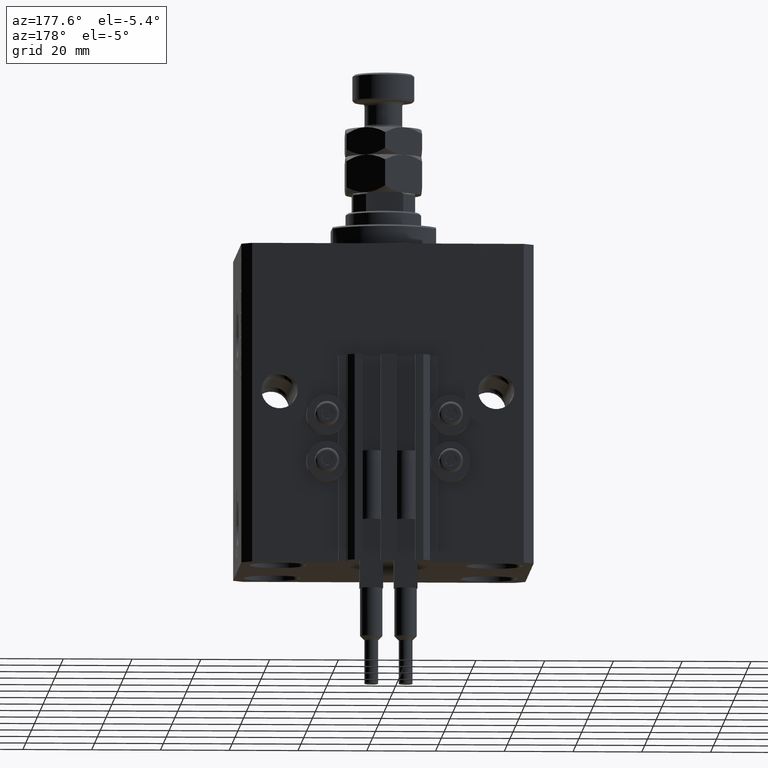
[diagram: clean part render]
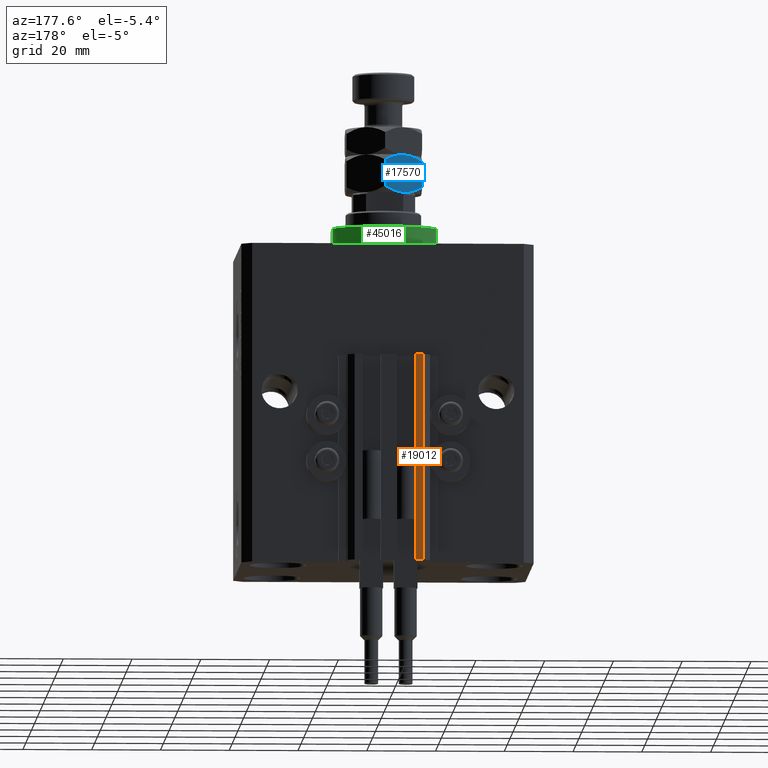
[diagram: same view with three faces highlighted in distinct colors, each labeled with its STEP entity id]
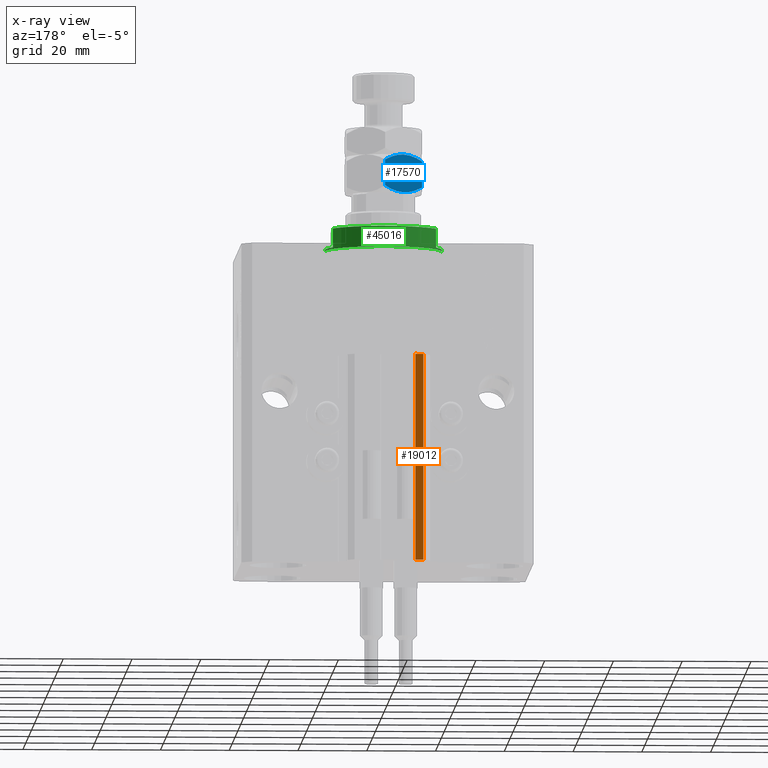
[diagram: x-ray of the same camera — body ghosted, the three highlighted faces saturated]
A machine part, auxiliary view with three faces highlighted in distinct colors.
The next image is the same camera in x-ray (body ghosted, the three faces saturated) — at least one of them is partly hidden behind the body in this view.
Their STEP definitions:

[orange] entity #19012 — the highlighted planar face has unit normal (0, 1, 0).
#2567 = LINE ( 'NONE', #9746, #6395 ) ;
#3999 = CARTESIAN_POINT ( 'NONE',  ( -10.00000000000000000, 39.49999999999999289, -33.00000000000000000 ) ) ;
#5890 = EDGE_CURVE ( 'NONE', #11128, #13627, #31370, .T. ) ;
#6395 = VECTOR ( 'NONE', #29684, 1000.000000000000000 ) ;
#8713 = ORIENTED_EDGE ( 'NONE', *, *, #41497, .F. ) ;
#9449 = CARTESIAN_POINT ( 'NONE',  ( -7.650000000000002132, 39.49999999999999289, -93.00000000000000000 ) ) ;
#9746 = CARTESIAN_POINT ( 'NONE',  ( -7.650000000000002132, 39.49999999999999289, -33.00000000000000000 ) ) ;
#11128 = VERTEX_POINT ( 'NONE', #9449 ) ;
#11771 = FACE_OUTER_BOUND ( 'NONE', #12920, .T. ) ;
#12134 = CARTESIAN_POINT ( 'NONE',  ( -7.650000000000002132, 39.49999999999999289, -93.00000000000000000 ) ) ;
#12920 = EDGE_LOOP ( 'NONE', ( #8713, #31253, #44027, #21260 ) ) ;
#13582 = CARTESIAN_POINT ( 'NONE',  ( -10.00000000000000000, 39.49999999999999289, -93.00000000000000000 ) ) ;
#13627 = VERTEX_POINT ( 'NONE', #39237 ) ;
#13652 = DIRECTION ( 'NONE',  ( -1.000000000000000000, 0.000000000000000000, 0.000000000000000000 ) ) ;
#15983 = LINE ( 'NONE', #12134, #47927 ) ;
#19012 = ADVANCED_FACE ( 'NONE', ( #11771 ), #45838, .T. ) ;
#20171 = EDGE_CURVE ( 'NONE', #40782, #38374, #24376, .T. ) ;
#21176 = EDGE_CURVE ( 'NONE', #11128, #40782, #15983, .T. ) ;
#21260 = ORIENTED_EDGE ( 'NONE', *, *, #20171, .T. ) ;
#23571 = DIRECTION ( 'NONE',  ( 0.000000000000000000, 0.000000000000000000, 1.000000000000000000 ) ) ;
#24376 = LINE ( 'NONE', #13582, #26674 ) ;
#24650 = VECTOR ( 'NONE', #43143, 1000.000000000000000 ) ;
#26674 = VECTOR ( 'NONE', #36901, 1000.000000000000000 ) ;
#27393 = DIRECTION ( 'NONE',  ( 0.000000000000000000, 1.000000000000000000, -0.000000000000000000 ) ) ;
#29684 = DIRECTION ( 'NONE',  ( -1.000000000000000000, 0.000000000000000000, 0.000000000000000000 ) ) ;
#30693 = AXIS2_PLACEMENT_3D ( 'NONE', #46840, #27393, #23571 ) ;
#31253 = ORIENTED_EDGE ( 'NONE', *, *, #5890, .F. ) ;
#31370 = LINE ( 'NONE', #46719, #24650 ) ;
#36901 = DIRECTION ( 'NONE',  ( 0.000000000000000000, 0.000000000000000000, 1.000000000000000000 ) ) ;
#38374 = VERTEX_POINT ( 'NONE', #3999 ) ;
#39237 = CARTESIAN_POINT ( 'NONE',  ( -7.650000000000002132, 39.49999999999999289, -33.00000000000000000 ) ) ;
#40782 = VERTEX_POINT ( 'NONE', #42220 ) ;
#41497 = EDGE_CURVE ( 'NONE', #13627, #38374, #2567, .T. ) ;
#42220 = CARTESIAN_POINT ( 'NONE',  ( -10.00000000000000000, 39.49999999999999289, -93.00000000000000000 ) ) ;
#43143 = DIRECTION ( 'NONE',  ( 0.000000000000000000, 0.000000000000000000, 1.000000000000000000 ) ) ;
#44027 = ORIENTED_EDGE ( 'NONE', *, *, #21176, .T. ) ;
#45838 = PLANE ( 'NONE',  #30693 ) ;
#46719 = CARTESIAN_POINT ( 'NONE',  ( -7.650000000000002132, 39.49999999999999289, -93.00000000000000000 ) ) ;
#46840 = CARTESIAN_POINT ( 'NONE',  ( -7.650000000000002132, 39.49999999999999289, -93.00000000000000000 ) ) ;
#47927 = VECTOR ( 'NONE', #13652, 1000.000000000000000 ) ;

[blue] entity #17570 — the highlighted planar face has unit normal (0.5, -0.866, 0).
#261 = CARTESIAN_POINT ( 'NONE',  ( -11.00000000000000000, 6.350852961085892368, 1.701705922171765195 ) ) ;
#374 = CARTESIAN_POINT ( 'NONE',  ( -4.543329525579419048, 10.07861339756131791, 1.768604793866978714E-15 ) ) ;
#889 = EDGE_LOOP ( 'NONE', ( #8800, #24071, #37839, #48757, #32128, #46917 ) ) ;
#1972 = CARTESIAN_POINT ( 'NONE',  ( -3.579894028994817123, 10.63485314086127786, 10.79187792513292798 ) ) ;
#2733 = CARTESIAN_POINT ( 'NONE',  ( -4.529374112020101428, 10.08667055933643830, 10.95634070256487469 ) ) ;
#3614 = VERTEX_POINT ( 'NONE', #40692 ) ;
#3741 = CARTESIAN_POINT ( 'NONE',  ( -11.00000000000000000, 6.350852961085892368, 1.701705922171765195 ) ) ;
#3966 = CARTESIAN_POINT ( 'NONE',  ( -3.602926119288147433, 10.62155555733042434, 0.1689086083647601266 ) ) ;
#6657 = VERTEX_POINT ( 'NONE', #23328 ) ;
#7058 = VECTOR ( 'NONE', #27089, 1000.000000000000000 ) ;
#7133 = CARTESIAN_POINT ( 'NONE',  ( -11.00000000000000000, 6.350852961085890591, 11.00000000000000000 ) ) ;
#7353 = CARTESIAN_POINT ( 'NONE',  ( -7.397073880711845462, 8.431003325927239445, 10.83109139163524404 ) ) ;
#8364 = B_SPLINE_CURVE_WITH_KNOTS ( 'NONE', 3,
 ( #3741, #16251, #12394, #28025, #19342, #43638, #50557, #43139 ),
 .UNSPECIFIED., .F., .F.,
 ( 4, 2, 2, 4 ),
 ( 2.544311317612473652E-07, 0.003291871675740032539, 0.004937680298044168185, 0.006583488920348303831 ),
 .UNSPECIFIED. ) ;
#8800 = ORIENTED_EDGE ( 'NONE', *, *, #25559, .F. ) ;
#12394 = CARTESIAN_POINT ( 'NONE',  ( -9.255521992360788985, 7.358027808391769398, 0.7806233875467772920 ) ) ;
#13727 = CARTESIAN_POINT ( 'NONE',  ( -4.327962126576701651E-16, 12.70170592217176342, 9.298294077828241910 ) ) ;
#14758 = CARTESIAN_POINT ( 'NONE',  ( -6.456670474420569406, 8.973945485696344093, 11.00000000000000000 ) ) ;
#14972 = CARTESIAN_POINT ( 'NONE',  ( 0.000000000000000000, 12.70170592217176342, 11.00000000000000000 ) ) ;
#16041 = AXIS2_PLACEMENT_3D ( 'NONE', #47711, #23935, #39545 ) ;
#16251 = CARTESIAN_POINT ( 'NONE',  ( -10.13752086928278118, 6.848805519375908979, 1.203753363881748362 ) ) ;
#17401 = EDGE_CURVE ( 'NONE', #3614, #26347, #39049, .T. ) ;
#17570 = ADVANCED_FACE ( 'NONE', ( #47211 ), #27773, .F. ) ;
#18252 = CARTESIAN_POINT ( 'NONE',  ( -5.499999999999992895, 9.526279441628830114, 0.000000000000000000 ) ) ;
#19313 = CARTESIAN_POINT ( 'NONE',  ( -0.8614806024966418230, 12.20432986441868728, 1.204329864418604235 ) ) ;
#19342 = CARTESIAN_POINT ( 'NONE',  ( -7.420105971005176215, 8.417705742396382362, 0.2081220748670755127 ) ) ;
#22220 = CARTESIAN_POINT ( 'NONE',  ( -5.499999999999990230, 9.526279441628824785, 11.00000000000000000 ) ) ;
#23187 = DIRECTION ( 'NONE',  ( -0.000000000000000000, -0.000000000000000000, -1.000000000000000000 ) ) ;
#23328 = CARTESIAN_POINT ( 'NONE',  ( -5.499999999999990230, 9.526279441628824785, 11.00000000000000000 ) ) ;
#23935 = DIRECTION ( 'NONE',  ( 0.4999999999999993339, -0.8660254037844390407, 0.000000000000000000 ) ) ;
#24071 = ORIENTED_EDGE ( 'NONE', *, *, #38103, .F. ) ;
#25056 = VERTEX_POINT ( 'NONE', #261 ) ;
#25559 = EDGE_CURVE ( 'NONE', #25056, #43131, #8364, .T. ) ;
#26004 = B_SPLINE_CURVE_WITH_KNOTS ( 'NONE', 3,
 ( #13727, #37037, #41640, #49542, #1972, #2733, #29346, #44956 ),
 .UNSPECIFIED., .F., .F.,
 ( 4, 2, 2, 4 ),
 ( 2.544311317609508508E-07, 0.003291871675740026034, 0.004937680298044156910, 0.006583488920348289086 ),
 .UNSPECIFIED. ) ;
#26347 = VERTEX_POINT ( 'NONE', #44151 ) ;
#27003 = CARTESIAN_POINT ( 'NONE',  ( 9.006588997586899406E-16, 12.70170592217176342, 1.701705922171758312 ) ) ;
#27089 = DIRECTION ( 'NONE',  ( -0.000000000000000000, -0.000000000000000000, -1.000000000000000000 ) ) ;
#27773 = PLANE ( 'NONE',  #16041 ) ;
#28025 = CARTESIAN_POINT ( 'NONE',  ( -7.884967580346608607, 8.149317767107183030, 0.3282192120904074417 ) ) ;
#29346 = CARTESIAN_POINT ( 'NONE',  ( -5.018290712253354435, 9.804394428580495813, 11.00000000000000178 ) ) ;
#29888 = CARTESIAN_POINT ( 'NONE',  ( -10.13851939750335696, 6.848229018838968507, 9.795670135581390880 ) ) ;
#31848 = CARTESIAN_POINT ( 'NONE',  ( -5.499999999999992895, 9.526279441628830114, 0.000000000000000000 ) ) ;
#32128 = ORIENTED_EDGE ( 'NONE', *, *, #17401, .T. ) ;
#34084 = B_SPLINE_CURVE_WITH_KNOTS ( 'NONE', 3,
 ( #22220, #14758, #7353, #50324, #29888, #37837 ),
 .UNSPECIFIED., .F., .F.,
 ( 4, 2, 4 ),
 ( 0.006583488920348289086, 0.009852050593448704457, 0.01312061226654911983 ),
 .UNSPECIFIED. ) ;
#35909 = EDGE_CURVE ( 'NONE', #6657, #38046, #34084, .T. ) ;
#36403 = EDGE_CURVE ( 'NONE', #43131, #26347, #41321, .T. ) ;
#37037 = CARTESIAN_POINT ( 'NONE',  ( -0.8624791307172121613, 12.20375336388174681, 9.796246636118258522 ) ) ;
#37357 = EDGE_CURVE ( 'NONE', #3614, #6657, #26004, .T. ) ;
#37837 = CARTESIAN_POINT ( 'NONE',  ( -11.00000000000000000, 6.350852961085890591, 9.298294077828234805 ) ) ;
#37839 = ORIENTED_EDGE ( 'NONE', *, *, #35909, .F. ) ;
#38046 = VERTEX_POINT ( 'NONE', #50619 ) ;
#38103 = EDGE_CURVE ( 'NONE', #38046, #25056, #42699, .T. ) ;
#39049 = LINE ( 'NONE', #14972, #49538 ) ;
#39545 = DIRECTION ( 'NONE',  ( 0.8660254037844389297, 0.4999999999999992784, 0.000000000000000000 ) ) ;
#40692 = CARTESIAN_POINT ( 'NONE',  ( -4.327962126576701651E-16, 12.70170592217176342, 9.298294077828241910 ) ) ;
#41321 = B_SPLINE_CURVE_WITH_KNOTS ( 'NONE', 3,
 ( #31848, #374, #3966, #42862, #19313, #27003 ),
 .UNSPECIFIED., .F., .F.,
 ( 4, 2, 4 ),
 ( 0.006583488920348303831, 0.009852050593448711396, 0.01312061226654911809 ),
 .UNSPECIFIED. ) ;
#41640 = CARTESIAN_POINT ( 'NONE',  ( -1.744478007639206130, 11.69453107486589083, 10.21937661245322637 ) ) ;
#42699 = LINE ( 'NONE', #7133, #7058 ) ;
#42862 = CARTESIAN_POINT ( 'NONE',  ( -1.748214531935804672, 11.69237379155741330, 0.7776848045220272621 ) ) ;
#43131 = VERTEX_POINT ( 'NONE', #18252 ) ;
#43139 = CARTESIAN_POINT ( 'NONE',  ( -5.499999999999992895, 9.526279441628830114, 0.000000000000000000 ) ) ;
#43638 = CARTESIAN_POINT ( 'NONE',  ( -6.470625887979888802, 8.965888323921223702, 0.04365929743512723255 ) ) ;
#44151 = CARTESIAN_POINT ( 'NONE',  ( 9.006588997586899406E-16, 12.70170592217176342, 1.701705922171758312 ) ) ;
#44956 = CARTESIAN_POINT ( 'NONE',  ( -5.499999999999990230, 9.526279441628824785, 11.00000000000000000 ) ) ;
#46917 = ORIENTED_EDGE ( 'NONE', *, *, #36403, .F. ) ;
#47211 = FACE_OUTER_BOUND ( 'NONE', #889, .T. ) ;
#47711 = CARTESIAN_POINT ( 'NONE',  ( 0.000000000000000000, 12.70170592217176342, 11.00000000000000000 ) ) ;
#48757 = ORIENTED_EDGE ( 'NONE', *, *, #37357, .F. ) ;
#49538 = VECTOR ( 'NONE', #23187, 1000.000000000000000 ) ;
#49542 = CARTESIAN_POINT ( 'NONE',  ( -3.115032419653383400, 10.90324111615047542, 10.67178078790959539 ) ) ;
#50324 = CARTESIAN_POINT ( 'NONE',  ( -9.251785468064188223, 7.360185091700242488, 10.22231519547797340 ) ) ;
#50557 = CARTESIAN_POINT ( 'NONE',  ( -5.981709287746635795, 9.248164454677164414, 1.734723475976807094E-15 ) ) ;
#50619 = CARTESIAN_POINT ( 'NONE',  ( -11.00000000000000000, 6.350852961085890591, 9.298294077828234805 ) ) ;

[green] entity #45016 — the highlighted cylindrical surface (partial cylindrical patch) has radius 17 mm, axis along (0, 0, -1).
#397 = EDGE_CURVE ( 'NONE', #24282, #26037, #17559, .T. ) ;
#822 = DIRECTION ( 'NONE',  ( -1.000000000000000000, 0.000000000000000000, 0.000000000000000000 ) ) ;
#879 = ORIENTED_EDGE ( 'NONE', *, *, #49297, .F. ) ;
#3991 = DIRECTION ( 'NONE',  ( -0.000000000000000000, -0.000000000000000000, 1.000000000000000000 ) ) ;
#5919 = DIRECTION ( 'NONE',  ( -0.000000000000000000, -0.000000000000000000, -1.000000000000000000 ) ) ;
#6126 = AXIS2_PLACEMENT_3D ( 'NONE', #16909, #32276, #12543 ) ;
#7254 = FACE_OUTER_BOUND ( 'NONE', #45711, .T. ) ;
#7818 = LINE ( 'NONE', #11641, #21752 ) ;
#8393 = VERTEX_POINT ( 'NONE', #35885 ) ;
#10032 = ORIENTED_EDGE ( 'NONE', *, *, #16439, .T. ) ;
#10053 = CARTESIAN_POINT ( 'NONE',  ( 14.99999999999999645, 8.000000000000003553, -1.000000000000000000 ) ) ;
#11641 = CARTESIAN_POINT ( 'NONE',  ( -15.00000000000000000, 8.000000000000001776, -7.000000000000000000 ) ) ;
#11827 = EDGE_CURVE ( 'NONE', #23074, #13473, #49204, .T. ) ;
#12177 = ORIENTED_EDGE ( 'NONE', *, *, #11827, .F. ) ;
#12543 = DIRECTION ( 'NONE',  ( -1.000000000000000000, 0.000000000000000000, 0.000000000000000000 ) ) ;
#13473 = VERTEX_POINT ( 'NONE', #21352 ) ;
#13905 = VECTOR ( 'NONE', #31409, 1000.000000000000000 ) ;
#14214 = CARTESIAN_POINT ( 'NONE',  ( -17.00000000000000000, 2.081899558550500280E-15, -7.000000000000000000 ) ) ;
#16311 = CARTESIAN_POINT ( 'NONE',  ( 0.000000000000000000, 0.000000000000000000, -1.000000000000000000 ) ) ;
#16439 = EDGE_CURVE ( 'NONE', #43923, #13473, #21754, .T. ) ;
#16637 = ORIENTED_EDGE ( 'NONE', *, *, #37448, .T. ) ;
#16909 = CARTESIAN_POINT ( 'NONE',  ( 0.000000000000000000, 0.000000000000000000, -6.500000000000013323 ) ) ;
#17323 = DIRECTION ( 'NONE',  ( -1.000000000000000000, 0.000000000000000000, 0.000000000000000000 ) ) ;
#17518 = CARTESIAN_POINT ( 'NONE',  ( -17.00000000000000000, 2.081899558550500280E-15, -1.000000000000000000 ) ) ;
#17559 = CIRCLE ( 'NONE', #6126, 17.00000000000000000 ) ;
#18242 = DIRECTION ( 'NONE',  ( -0.000000000000000000, -0.000000000000000000, 1.000000000000000000 ) ) ;
#18322 = VECTOR ( 'NONE', #18242, 1000.000000000000000 ) ;
#18807 = ORIENTED_EDGE ( 'NONE', *, *, #38205, .F. ) ;
#19302 = AXIS2_PLACEMENT_3D ( 'NONE', #44808, #5919, #37147 ) ;
#19879 = CARTESIAN_POINT ( 'NONE',  ( 15.00000000000000000, 8.000000000000001776, -7.000000000000000000 ) ) ;
#21185 = DIRECTION ( 'NONE',  ( 0.000000000000000000, 0.000000000000000000, -1.000000000000000000 ) ) ;
#21238 = CIRCLE ( 'NONE', #32712, 17.00000000000000000 ) ;
#21352 = CARTESIAN_POINT ( 'NONE',  ( 17.00000000000000000, 0.000000000000000000, -0.4999999999999995559 ) ) ;
#21752 = VECTOR ( 'NONE', #3991, 1000.000000000000000 ) ;
#21754 = CIRCLE ( 'NONE', #19302, 17.00000000000000000 ) ;
#23074 = VERTEX_POINT ( 'NONE', #47754 ) ;
#24229 = EDGE_CURVE ( 'NONE', #26302, #43923, #45701, .T. ) ;
#24282 = VERTEX_POINT ( 'NONE', #41876 ) ;
#26037 = VERTEX_POINT ( 'NONE', #28345 ) ;
#26302 = VERTEX_POINT ( 'NONE', #17518 ) ;
#28345 = CARTESIAN_POINT ( 'NONE',  ( -15.00000000000000000, 8.000000000000001776, -6.500000000000013323 ) ) ;
#28773 = VERTEX_POINT ( 'NONE', #10053 ) ;
#30047 = CARTESIAN_POINT ( 'NONE',  ( 0.000000000000000000, 0.000000000000000000, -7.000000000000000000 ) ) ;
#30108 = AXIS2_PLACEMENT_3D ( 'NONE', #30047, #38492, #42573 ) ;
#30766 = AXIS2_PLACEMENT_3D ( 'NONE', #16311, #21185, #17323 ) ;
#31409 = DIRECTION ( 'NONE',  ( -0.000000000000000000, -0.000000000000000000, 1.000000000000000000 ) ) ;
#32034 = DIRECTION ( 'NONE',  ( 0.000000000000000000, 0.000000000000000000, -1.000000000000000000 ) ) ;
#32165 = LINE ( 'NONE', #19879, #13905 ) ;
#32276 = DIRECTION ( 'NONE',  ( 0.000000000000000000, 0.000000000000000000, 1.000000000000000000 ) ) ;
#32712 = AXIS2_PLACEMENT_3D ( 'NONE', #36142, #32034, #822 ) ;
#33178 = ORIENTED_EDGE ( 'NONE', *, *, #24229, .T. ) ;
#34183 = VECTOR ( 'NONE', #40864, 1000.000000000000000 ) ;
#35050 = ORIENTED_EDGE ( 'NONE', *, *, #397, .T. ) ;
#35677 = CIRCLE ( 'NONE', #30766, 17.00000000000000000 ) ;
#35885 = CARTESIAN_POINT ( 'NONE',  ( -14.99999999999999645, 8.000000000000003553, -1.000000000000000000 ) ) ;
#36142 = CARTESIAN_POINT ( 'NONE',  ( 0.000000000000000000, 0.000000000000000000, -1.000000000000000000 ) ) ;
#37147 = DIRECTION ( 'NONE',  ( 1.000000000000000000, 0.000000000000000000, 0.000000000000000000 ) ) ;
#37448 = EDGE_CURVE ( 'NONE', #26037, #8393, #7818, .T. ) ;
#37739 = CYLINDRICAL_SURFACE ( 'NONE', #30108, 17.00000000000000000 ) ;
#38205 = EDGE_CURVE ( 'NONE', #28773, #23074, #35677, .T. ) ;
#38492 = DIRECTION ( 'NONE',  ( -0.000000000000000000, -0.000000000000000000, 1.000000000000000000 ) ) ;
#40864 = DIRECTION ( 'NONE',  ( -0.000000000000000000, -0.000000000000000000, 1.000000000000000000 ) ) ;
#41876 = CARTESIAN_POINT ( 'NONE',  ( 15.00000000000000000, 8.000000000000001776, -6.500000000000013323 ) ) ;
#42573 = DIRECTION ( 'NONE',  ( 1.000000000000000000, 0.000000000000000000, 0.000000000000000000 ) ) ;
#43923 = VERTEX_POINT ( 'NONE', #44134 ) ;
#44134 = CARTESIAN_POINT ( 'NONE',  ( -17.00000000000000000, 2.081899558550500280E-15, -0.4999999999999995559 ) ) ;
#44808 = CARTESIAN_POINT ( 'NONE',  ( 0.000000000000000000, 0.000000000000000000, -0.4999999999999995559 ) ) ;
#45016 = ADVANCED_FACE ( 'NONE', ( #7254 ), #37739, .T. ) ;
#45701 = LINE ( 'NONE', #14214, #34183 ) ;
#45711 = EDGE_LOOP ( 'NONE', ( #45851, #33178, #10032, #12177, #18807, #879, #35050, #16637 ) ) ;
#45851 = ORIENTED_EDGE ( 'NONE', *, *, #48353, .F. ) ;
#47754 = CARTESIAN_POINT ( 'NONE',  ( 17.00000000000000000, 0.000000000000000000, -1.000000000000000000 ) ) ;
#48353 = EDGE_CURVE ( 'NONE', #26302, #8393, #21238, .T. ) ;
#49204 = LINE ( 'NONE', #49451, #18322 ) ;
#49297 = EDGE_CURVE ( 'NONE', #24282, #28773, #32165, .T. ) ;
#49451 = CARTESIAN_POINT ( 'NONE',  ( 17.00000000000000000, 0.000000000000000000, -7.000000000000000000 ) ) ;